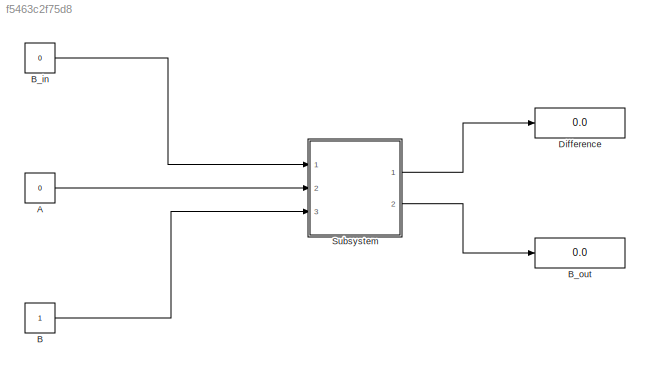
MODEL slx_f5463c2f75d8
KIND model
CONFIG AbsTol = auto
CONFIG EnableMultiTasking = off
CONFIG FixedStep = auto
CONFIG MaxStep = auto
CONFIG MinStep = auto
CONFIG RelTol = 1e-3
CONFIG SampleTimeConstraint = Unconstrained
CONFIG SolverName = VariableStepAuto
CONFIG StartTime = 0.0
CONFIG StopTime = 10.0
BLOCK [Constant] A
  Value = 0
BLOCK [Constant] B
BLOCK [Constant] B_in
  Value = 0
BLOCK [Display] B_out
  Decimation = 1
  Ports = [1]
BLOCK [Display] Difference
  Decimation = 1
  Ports = [1]
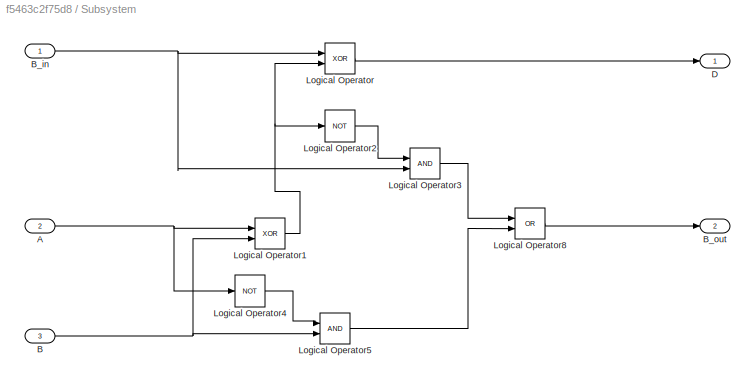
BLOCK [SubSystem] Subsystem
  Ports = [3, 2]
  RequestExecContextInheritance = off
BLOCK [Inport] Subsystem/A
  Port = 2
BLOCK [Inport] Subsystem/B
  Port = 3
BLOCK [Inport] Subsystem/B_in
BLOCK [Outport] Subsystem/B_out
  Port = 2
BLOCK [Outport] Subsystem/D
BLOCK [Logic] Subsystem/Logical Operator
  AllPortsSameDT = off
  Operator = XOR
  OutDataTypeStr = boolean
  Ports = [2, 1]
BLOCK [Logic] Subsystem/Logical Operator1
  AllPortsSameDT = off
  Operator = XOR
  OutDataTypeStr = boolean
  Ports = [2, 1]
BLOCK [Logic] Subsystem/Logical Operator2
  AllPortsSameDT = off
  Operator = NOT
  OutDataTypeStr = boolean
  Ports = [1, 1]
BLOCK [Logic] Subsystem/Logical Operator3
  AllPortsSameDT = off
  OutDataTypeStr = boolean
  Ports = [2, 1]
BLOCK [Logic] Subsystem/Logical Operator4
  AllPortsSameDT = off
  Operator = NOT
  OutDataTypeStr = boolean
  Ports = [1, 1]
BLOCK [Logic] Subsystem/Logical Operator5
  AllPortsSameDT = off
  OutDataTypeStr = boolean
  Ports = [2, 1]
BLOCK [Logic] Subsystem/Logical Operator8
  AllPortsSameDT = off
  Operator = OR
  OutDataTypeStr = boolean
  Ports = [2, 1]
LINE A:1 -> Subsystem:2
LINE B:1 -> Subsystem:3
LINE B_in:1 -> Subsystem:1
NET Subsystem/A:1 -> Subsystem/Logical Operator1:1, Subsystem/Logical Operator4:1
NET Subsystem/B:1 -> Subsystem/Logical Operator1:2, Subsystem/Logical Operator5:2
NET Subsystem/B_in:1 -> Subsystem/Logical Operator3:2, Subsystem/Logical Operator:1
NET Subsystem/Logical Operator1:1 -> Subsystem/Logical Operator2:1, Subsystem/Logical Operator:2
LINE Subsystem/Logical Operator2:1 -> Subsystem/Logical Operator3:1
LINE Subsystem/Logical Operator3:1 -> Subsystem/Logical Operator8:1
LINE Subsystem/Logical Operator4:1 -> Subsystem/Logical Operator5:1
LINE Subsystem/Logical Operator5:1 -> Subsystem/Logical Operator8:2
LINE Subsystem/Logical Operator8:1 -> Subsystem/B_out:1
LINE Subsystem/Logical Operator:1 -> Subsystem/D:1
LINE Subsystem:1 -> Difference:1
LINE Subsystem:2 -> B_out:1
note: NET lines group one-source signal fan-out (src -> all destinations, sorted); 1:1 wires keep LINE
